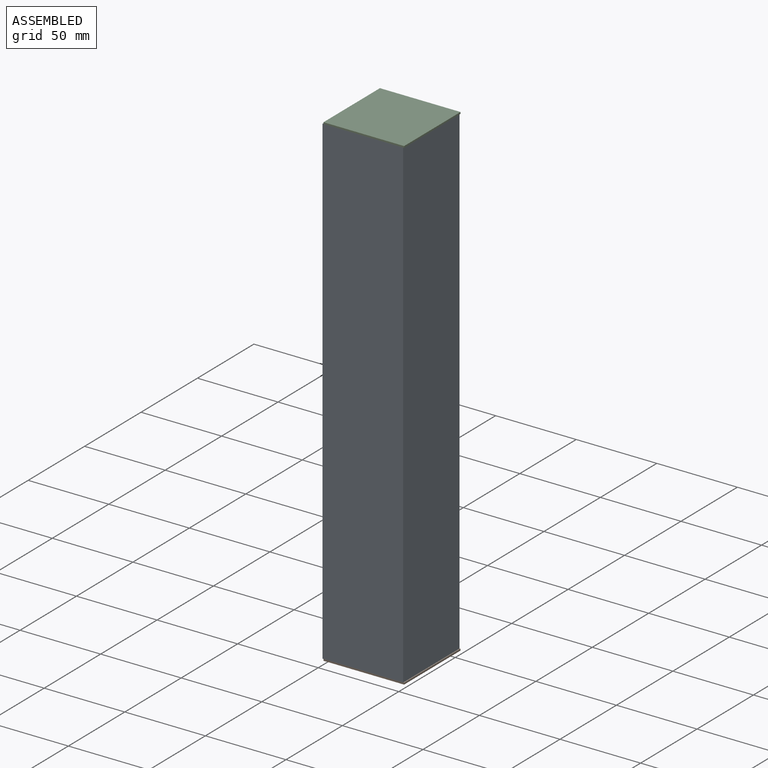
[diagram: assembled view]
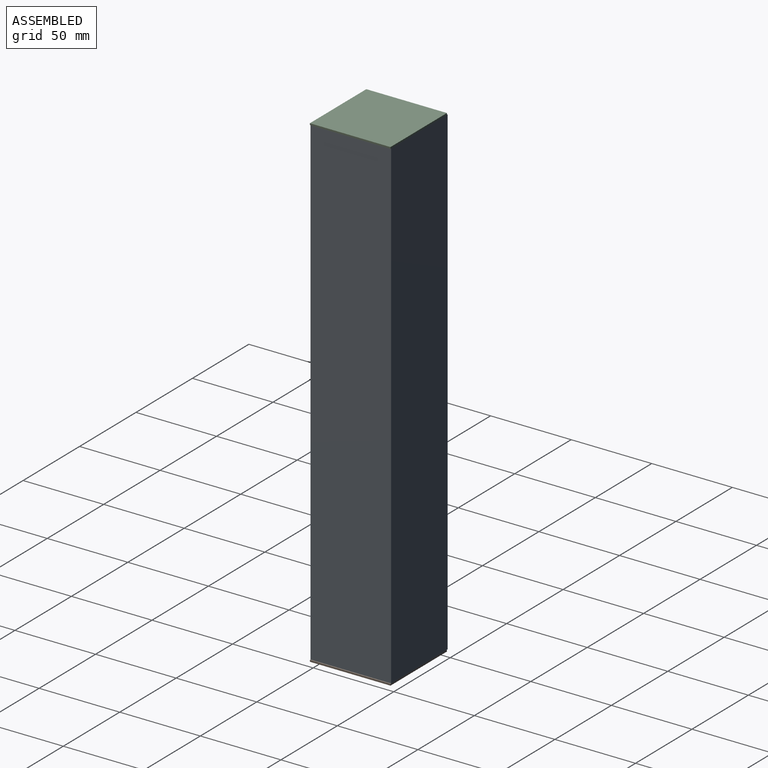
[diagram: assembled view, second angle]
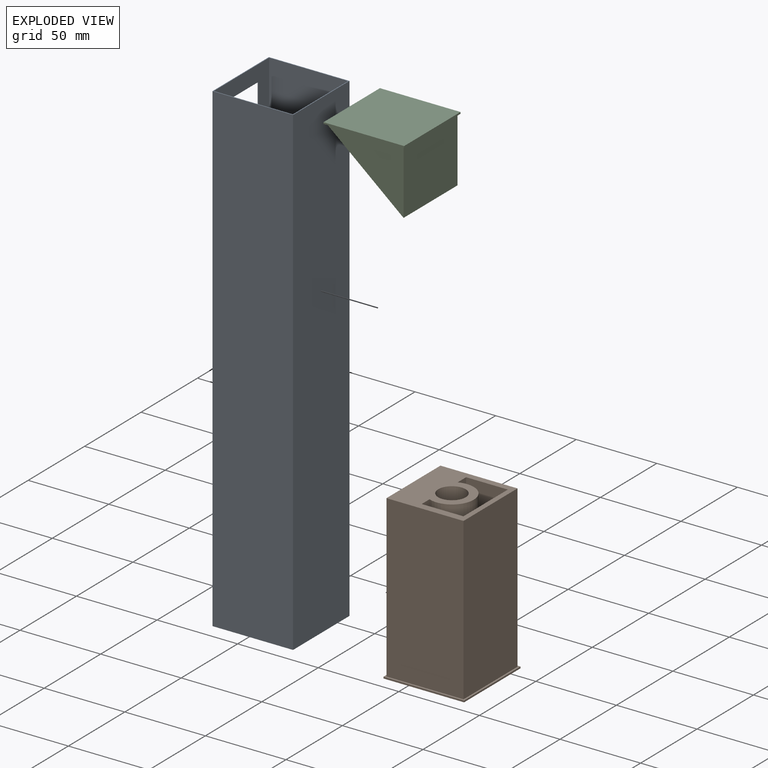
[diagram: exploded view]
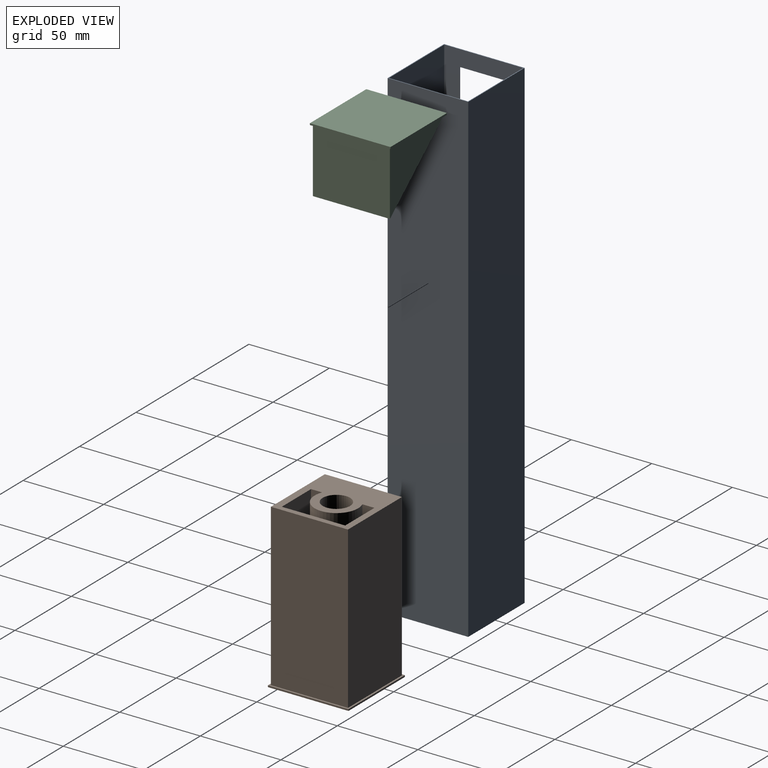
[diagram: exploded view, second angle]
ASSEMBLY  parts=3 mates=4
PART A: 14 faces, bbox 50x50x300 mm
  f0: plane 300x50mm, normal (-1,0,0), area 14100mm2, adj f2,f3,f8,f9,f10,f11,f12,f13
  f1: plane 300x49mm, normal (1,0,0), area 13800mm2, adj f4,f6,f8,f9,f10,f11,f12,f13
  f2: plane 300x50mm, normal (0,1,0), area 15000mm2, adj f0,f7,f8,f9
  f3: plane 300x50mm, normal (0,-1,0), area 15000mm2, adj f0,f7,f8,f9
  f4: plane 300x49mm, normal (0,-1,0), area 14700mm2, adj f1,f5,f8,f9
  f5: plane 300x49mm, normal (-1,0,0), area 14700mm2, adj f4,f6,f8,f9
  f6: plane 300x49mm, normal (0,1,0), area 14700mm2, adj f1,f5,f8,f9
  f7: plane 300x50mm, normal (1,0,0), area 15000mm2, adj f2,f3,f8,f9
  f8: plane 50x50mm, normal (0,0,1), area 99mm2, adj f0,f1,f2,f3,f4,f5,f6,f7
  f9: plane 50x50mm, normal (0,0,-1), area 99mm2, adj f0,f1,f2,f3,f4,f5,f6,f7
  f10: plane 30x0.5mm, normal (0,0,-1), area 15mm2, adj f0,f1,f11,f13
  f11: plane 30x0.5mm, normal (0,-1,0), area 15mm2, adj f0,f1,f10,f12
  f12: plane 30x0.5mm, normal (0,0,1), area 15mm2, adj f0,f1,f11,f13
  f13: plane 30x0.5mm, normal (0,1,0), area 15mm2, adj f0,f1,f10,f12
PART B: 23 faces, bbox 50x50x101 mm
  f0: plane 39.35x25.89mm, normal (0,0,1), area 595.6mm2, adj f2,f15,f16,f17,f18,f21
  f1: plane 13.45x3.2mm, normal (1,0,0), area 43.1mm2, adj f14,f19,f20
  f2: plane 100x7.49mm, normal (1,0,0), area 748.8mm2, adj f0,f13,f17,f21
  f3: plane 50x50mm, normal (0,0,1), area 215.2mm2, adj f4,f5,f6,f7,f9,f10,f11,f12
  f4: plane 50x1mm, normal (1,0,0), area 50mm2, adj f3,f5,f7,f8
  f5: plane 50x1mm, normal (0,1,0), area 50mm2, adj f3,f4,f6,f8
  f6: plane 50x1mm, normal (-1,0,0), area 50mm2, adj f3,f5,f7,f8
  f7: plane 50x1mm, normal (0,-1,0), area 50mm2, adj f3,f4,f6,f8
  f8: plane 50x50mm, normal (0,0,-1), area 2500mm2, adj f4,f5,f6,f7
  f9: plane 100x47.8mm, normal (1,0,0), area 4780mm2, adj f3,f10,f12,f13
  f10: plane 100x47.8mm, normal (0,1,0), area 4780mm2, adj f3,f9,f11,f13
  f11: plane 100x47.8mm, normal (-1,0,0), area 4760.4mm2, adj f3,f10,f12,f13,f22
  f12: plane 100x47.8mm, normal (0,-1,0), area 4780mm2, adj f3,f9,f11,f13
  f13: plane 47.8x47.8mm, normal (0,0,1), area 1462.2mm2, adj f2,f9,f10,f11,f12,f15,f16,f17
  f14: plane 17x13.7mm, normal (0,0,1), area 196mm2, adj f1,f19
  f15: plane 100x39.35mm, normal (-1,0,0), area 3935.2mm2, adj f0,f13,f16,f17
  f16: plane 100x25.89mm, normal (0,1,0), area 2588.6mm2, adj f0,f13,f15,f18
  f17: plane 100x25.89mm, normal (0,-1,0), area 2588.6mm2, adj f0,f2,f13,f15
  f18: plane 100x6.94mm, normal (1,0,0), area 694.3mm2, adj f0,f13,f16,f21
  f19: cylinder r=8.5mm len=100mm, axis (0,0,1), area 5271.2mm2, adj f1,f13,f14,f20,f22
  f20: plane 13.45x3.3mm, normal (0,0,1), area 31mm2, adj f1,f19
  f21: cylinder r=13.5mm len=100mm, axis (0,0,1), area 5307.8mm2, adj f0,f2,f13,f18
  f22: cylinder r=2.5mm len=15.78mm, axis (-1,0,0), area 244.8mm2, adj f11,f19
PART C: 10 faces, bbox 50x50x41 mm
  f0: plane 50x50mm, normal (0,0,1), area 215.2mm2, adj f1,f2,f3,f4,f6,f7,f8,f9
  f1: plane 50x1mm, normal (1,0,0), area 50mm2, adj f0,f2,f4,f5
  f2: plane 50x1mm, normal (0,1,0), area 50mm2, adj f0,f1,f3,f5
  f3: plane 50x1mm, normal (-1,0,0), area 50mm2, adj f0,f2,f4,f5
  f4: plane 50x1mm, normal (0,-1,0), area 50mm2, adj f0,f1,f3,f5
  f5: plane 50x50mm, normal (0,0,-1), area 2500mm2, adj f1,f2,f3,f4
  f6: plane 47.8x40mm, normal (1,0,0), area 956mm2, adj f0,f7,f9
  f7: plane 47.8x40mm, normal (0,1,0), area 1912mm2, adj f0,f6,f8,f9
  f8: plane 47.8x40mm, normal (-1,0,0), area 956mm2, adj f0,f7,f9
  f9: plane 47.8x47.8mm, normal (0,-0.64,0.77), area 2979.3mm2, adj f0,f6,f7,f8
PLACE A t=(27.56,-24.82,85.94)mm
PLACE B t=(28.16,-24.82,84.94)mm
PLACE C rot(axis=(0.71,0.71,0),180deg) t=(28.16,-24.82,386.94)mm
MATE planar B.f9 <-> A.f5  axis (1,0,0) through (52.06,-24.82,135.94)mm
MATE planar C.f7 <-> A.f5  axis (1,0,0) through (52.06,-24.82,365.94)mm
MATE planar C.f0 <-> A.f8  axis (0,0,-1) through (28.16,-24.82,385.94)mm
MATE planar B.f19 <-> A.f9  axis (0,0,1) through (28.16,-24.82,85.94)mm
